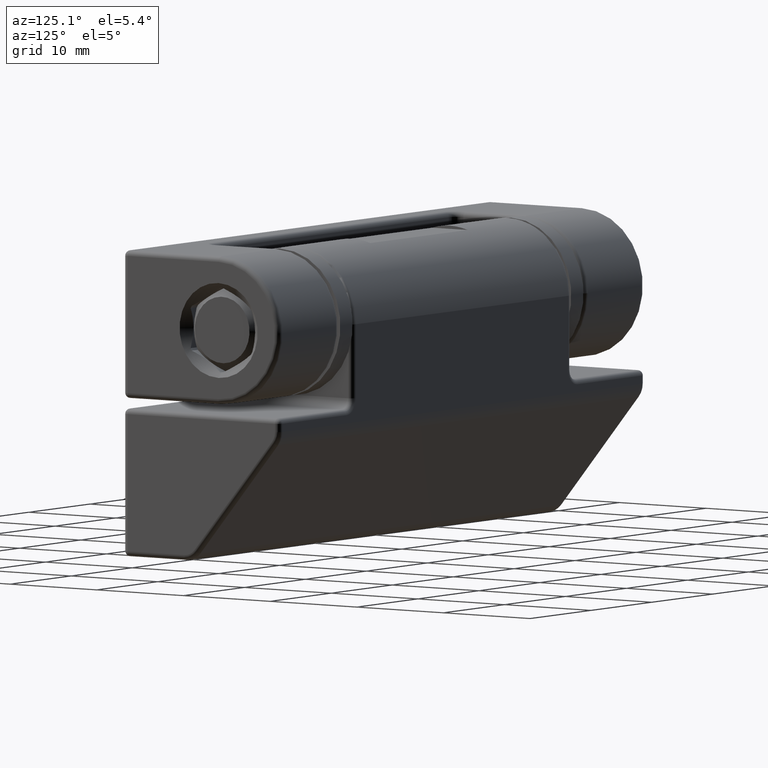
[diagram: clean part render]
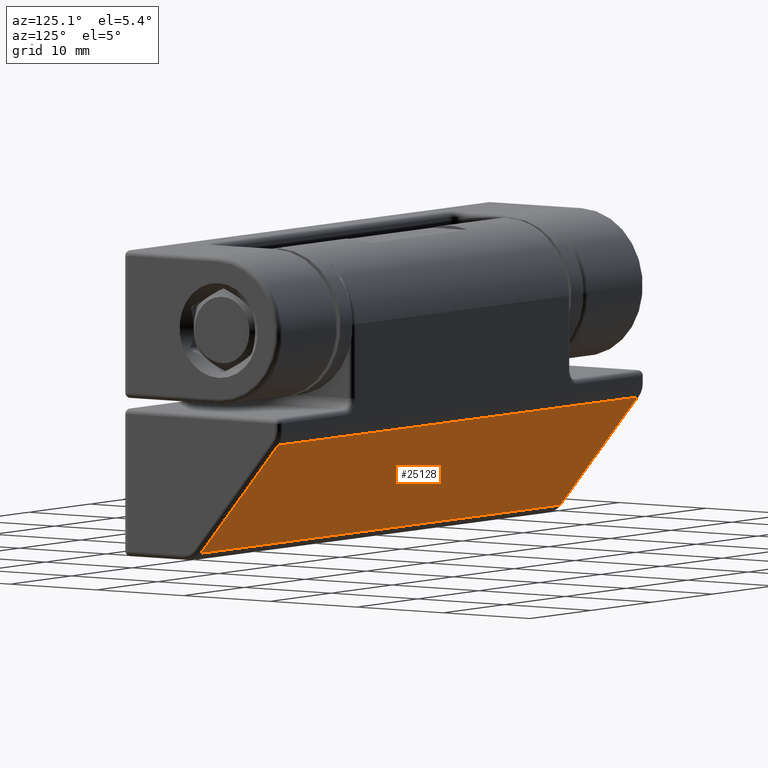
[diagram: same view with one face highlighted and labeled with its STEP entity id]
A machine part, auxiliary view. The second image highlights one B-rep face of the part: STEP entity #25128.
In plain terms, the highlighted planar face has unit normal (0, -0.7682, 0.6402).
Its self-contained STEP definition (entity closure, byte-faithful):
#754 = CARTESIAN_POINT ( 'NONE',  ( -29.50000000000000000, -2.999999999996415300, -22.00000000000000000 ) ) ;
#2110 = FACE_OUTER_BOUND ( 'NONE', #10707, .T. ) ;
#2207 = LINE ( 'NONE', #7677, #24691 ) ;
#3038 = DIRECTION ( 'NONE',  ( -0.0000000000000000000, 0.6401843996644799300, 0.7682212795973758500 ) ) ;
#3311 = ORIENTED_EDGE ( 'NONE', *, *, #16506, .T. ) ;
#5542 = DIRECTION ( 'NONE',  ( 0.0000000000000000000, -0.7682212795973758500, 0.6401843996644798200 ) ) ;
#7677 = CARTESIAN_POINT ( 'NONE',  ( 29.50000000000000000, -2.400307332770550000, -21.28036879932895100 ) ) ;
#8118 = ORIENTED_EDGE ( 'NONE', *, *, #13413, .T. ) ;
#8401 = LINE ( 'NONE', #754, #25110 ) ;
#8592 = LINE ( 'NONE', #26291, #13046 ) ;
#9098 = CARTESIAN_POINT ( 'NONE',  ( -29.50000000000000000, 6.536442559194670200, -10.55626892897069900 ) ) ;
#9269 = CARTESIAN_POINT ( 'NONE',  ( 970.0000000000000000, -2.400307332770545100, -21.28036879932895100 ) ) ;
#9974 = VERTEX_POINT ( 'NONE', #9098 ) ;
#10324 = EDGE_CURVE ( 'NONE', #14530, #13580, #2207, .T. ) ;
#10707 = EDGE_LOOP ( 'NONE', ( #13080, #3311, #8118, #11059 ) ) ;
#11059 = ORIENTED_EDGE ( 'NONE', *, *, #10324, .T. ) ;
#11933 = PLANE ( 'NONE',  #20658 ) ;
#12074 = DIRECTION ( 'NONE',  ( 0.0000000000000000000, -0.6401843996644799300, -0.7682212795973758500 ) ) ;
#13046 = VECTOR ( 'NONE', #13273, 1000.000000000000000 ) ;
#13080 = ORIENTED_EDGE ( 'NONE', *, *, #21069, .T. ) ;
#13273 = DIRECTION ( 'NONE',  ( 1.000000000000000000, -0.0000000000000000000, -0.0000000000000000000 ) ) ;
#13413 = EDGE_CURVE ( 'NONE', #9974, #14530, #8592, .T. ) ;
#13580 = VERTEX_POINT ( 'NONE', #17936 ) ;
#14222 = CARTESIAN_POINT ( 'NONE',  ( 970.0000000000000000, -2.999999999996415300, -22.00000000000000000 ) ) ;
#14530 = VERTEX_POINT ( 'NONE', #23335 ) ;
#16506 = EDGE_CURVE ( 'NONE', #20867, #9974, #8401, .T. ) ;
#17555 = VECTOR ( 'NONE', #24514, 1000.000000000000000 ) ;
#17936 = CARTESIAN_POINT ( 'NONE',  ( 29.50000000000000000, -2.400307332770545100, -21.28036879932895100 ) ) ;
#19774 = CARTESIAN_POINT ( 'NONE',  ( -29.50000000000000000, -2.400307332770545100, -21.28036879932895100 ) ) ;
#20658 = AXIS2_PLACEMENT_3D ( 'NONE', #14222, #5542, #20809 ) ;
#20809 = DIRECTION ( 'NONE',  ( 0.0000000000000000000, -0.6401843996644798200, -0.7682212795973758500 ) ) ;
#20867 = VERTEX_POINT ( 'NONE', #19774 ) ;
#21069 = EDGE_CURVE ( 'NONE', #13580, #20867, #27757, .T. ) ;
#23335 = CARTESIAN_POINT ( 'NONE',  ( 29.50000000000000000, 6.536442559194670200, -10.55626892897069900 ) ) ;
#24514 = DIRECTION ( 'NONE',  ( -1.000000000000000000, 0.0000000000000000000, 0.0000000000000000000 ) ) ;
#24691 = VECTOR ( 'NONE', #12074, 1000.000000000000000 ) ;
#25110 = VECTOR ( 'NONE', #3038, 1000.000000000000000 ) ;
#25128 = ADVANCED_FACE ( 'NONE', ( #2110 ), #11933, .F. ) ;
#26291 = CARTESIAN_POINT ( 'NONE',  ( 970.0000000000000000, 6.536442559194670200, -10.55626892897069900 ) ) ;
#27757 = LINE ( 'NONE', #9269, #17555 ) ;